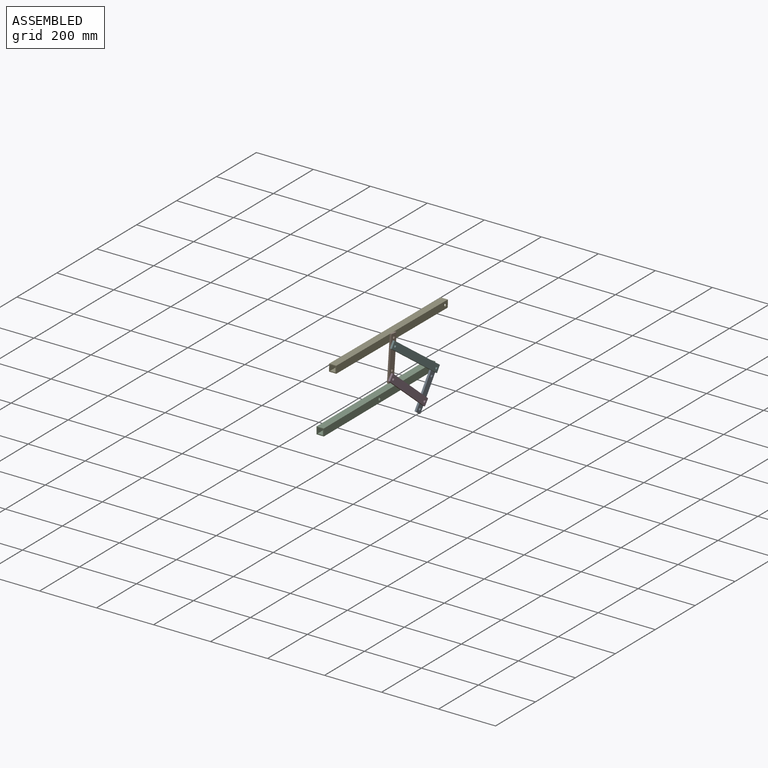
[diagram: assembled view]
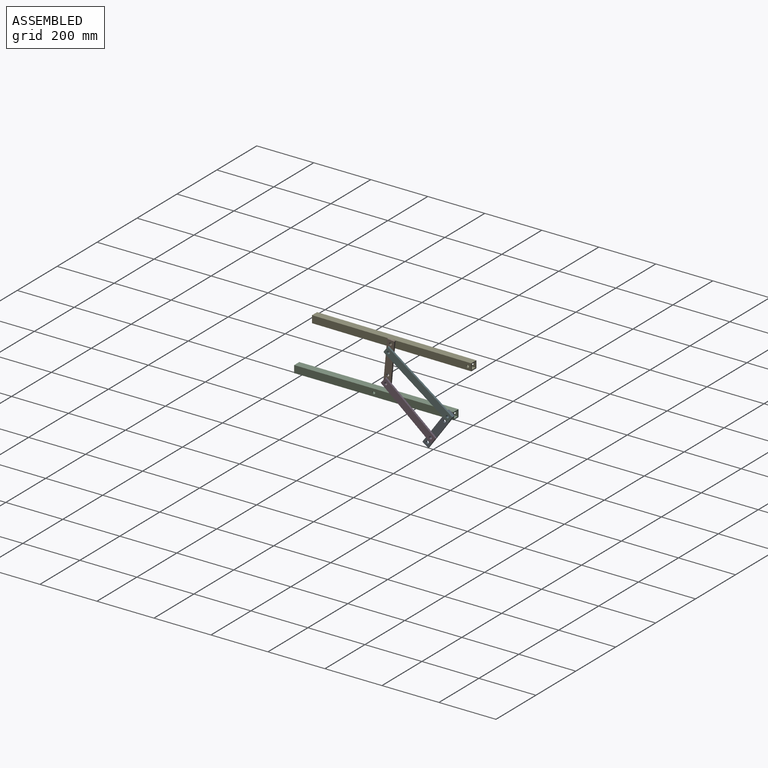
[diagram: assembled view, second angle]
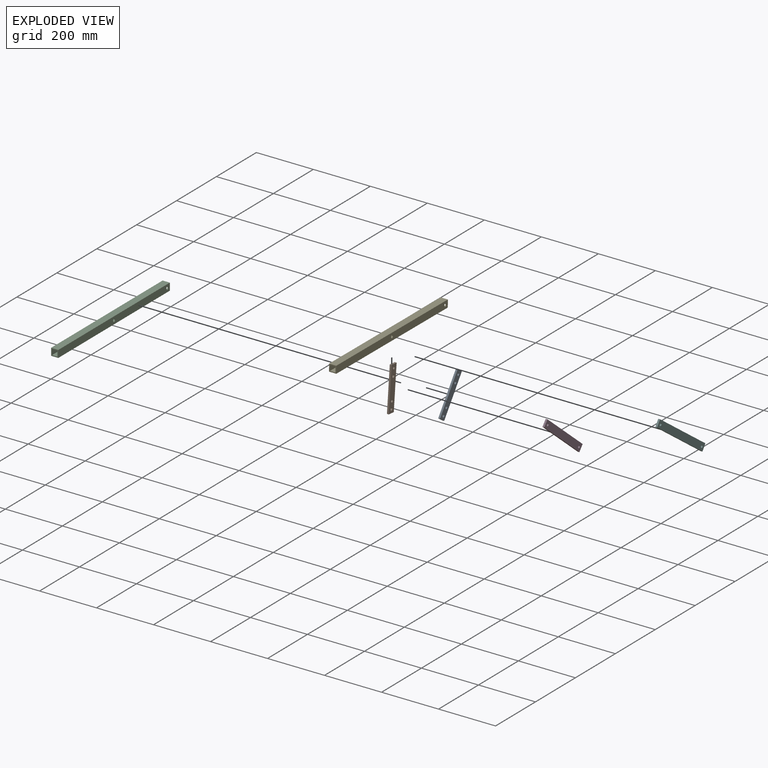
[diagram: exploded view]
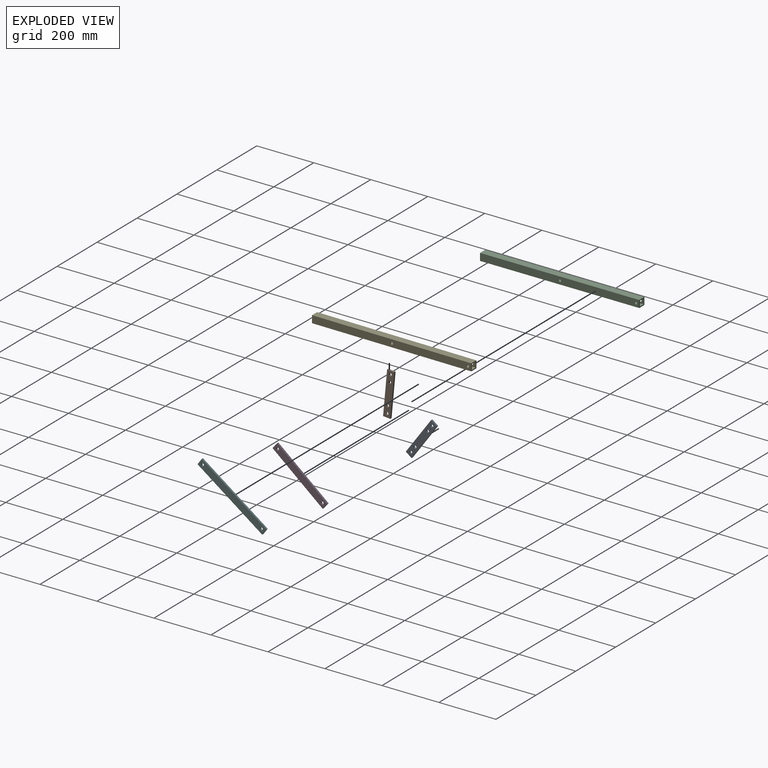
[diagram: exploded view, second angle]
ASSEMBLY  parts=6 mates=7
PART A: 10 faces, bbox 6.4x25.4x152.4 mm
  f0: plane 25.4x6.35mm, normal (0,0,1), area 161.3mm2, adj f1,f7,f8,f9
  f1: plane 152.4x6.35mm, normal (0,-1,0), area 967.7mm2, adj f0,f2,f8,f9
  f2: plane 25.4x6.35mm, normal (0,0,-1), area 161.3mm2, adj f1,f7,f8,f9
  f3: cylinder r=4.76mm len=9.53mm, axis (-1,0,0), area 190mm2, adj f8,f9
  f4: cylinder r=4.76mm len=9.53mm, axis (-1,0,0), area 190mm2, adj f8,f9
  f5: cylinder r=4.76mm len=9.53mm, axis (-1,0,0), area 190mm2, adj f8,f9
  f6: cylinder r=4.76mm len=9.53mm, axis (-1,0,0), area 190mm2, adj f8,f9
  f7: plane 152.4x6.35mm, normal (0,1,0), area 967.7mm2, adj f0,f2,f8,f9
  f8: plane 152.4x25.4mm, normal (1,0,0), area 3585.9mm2, adj f0,f1,f2,f3,f4,f5,f6,f7
  f9: plane 152.4x25.4mm, normal (-1,0,0), area 3585.9mm2, adj f0,f1,f2,f3,f4,f5,f6,f7
PART B: same geometry as A
PART C: 14 faces, bbox 25.4x558.8x25.4 mm
  f0: plane 558.8x25.4mm, normal (0,0,1), area 14193.5mm2, adj f1,f7,f8,f9
  f1: plane 558.8x25.4mm, normal (-1,0,0), area 14051mm2, adj f0,f2,f8,f9,f12,f13
  f2: plane 558.8x25.4mm, normal (0,0,-1), area 14193.5mm2, adj f1,f7,f8,f9
  f3: plane 558.8x19.05mm, normal (1,0,0), area 10502.6mm2, adj f4,f6,f8,f9,f12,f13
  f4: plane 558.8x19.05mm, normal (0,0,-1), area 10645.1mm2, adj f3,f5,f8,f9
  f5: plane 558.8x19.05mm, normal (-1,0,0), area 10502.6mm2, adj f4,f6,f8,f9,f10,f11
  f6: plane 558.8x19.05mm, normal (0,0,1), area 10645.1mm2, adj f3,f5,f8,f9
  f7: plane 558.8x25.4mm, normal (1,0,0), area 14051mm2, adj f0,f2,f8,f9,f10,f11
  f8: plane 25.4x25.4mm, normal (0,-1,0), area 282.3mm2, adj f0,f1,f2,f3,f4,f5,f6,f7
  f9: plane 25.4x25.4mm, normal (0,1,0), area 282.3mm2, adj f0,f1,f2,f3,f4,f5,f6,f7
  f10: cylinder r=4.76mm len=9.53mm, axis (1,0,0), area 95mm2, adj f5,f7
  f11: cylinder r=4.76mm len=9.53mm, axis (1,0,0), area 95mm2, adj f5,f7
  f12: cylinder r=4.76mm len=9.53mm, axis (1,0,0), area 95mm2, adj f1,f3
  f13: cylinder r=4.76mm len=9.53mm, axis (1,0,0), area 95mm2, adj f1,f3
PART D: 8 faces, bbox 6.4x228.6x25.4 mm
  f0: plane 228.6x6.35mm, normal (0,0,1), area 1451.6mm2, adj f1,f5,f6,f7
  f1: plane 25.4x6.35mm, normal (0,-1,0), area 161.3mm2, adj f0,f2,f6,f7
  f2: plane 228.6x6.35mm, normal (0,0,-1), area 1451.6mm2, adj f1,f5,f6,f7
  f3: cylinder r=4.76mm len=9.53mm, axis (-1,0,0), area 190mm2, adj f6,f7
  f4: cylinder r=4.76mm len=9.53mm, axis (-1,0,0), area 190mm2, adj f6,f7
  f5: plane 25.4x6.35mm, normal (0,1,0), area 161.3mm2, adj f0,f2,f6,f7
  f6: plane 228.6x25.4mm, normal (1,0,0), area 5663.9mm2, adj f0,f1,f2,f3,f4,f5
  f7: plane 228.6x25.4mm, normal (-1,0,0), area 5663.9mm2, adj f0,f1,f2,f3,f4,f5
PART E: same geometry as C
PART F: 8 faces, bbox 6.4x279.4x25.4 mm
  f0: plane 279.4x6.35mm, normal (0,0,1), area 1774.2mm2, adj f1,f5,f6,f7
  f1: plane 25.4x6.35mm, normal (0,-1,0), area 161.3mm2, adj f0,f2,f6,f7
  f2: plane 279.4x6.35mm, normal (0,0,-1), area 1774.2mm2, adj f1,f5,f6,f7
  f3: cylinder r=4.76mm len=9.53mm, axis (-1,0,0), area 190mm2, adj f6,f7
  f4: cylinder r=4.76mm len=9.53mm, axis (-1,0,0), area 190mm2, adj f6,f7
  f5: plane 25.4x6.35mm, normal (0,1,0), area 161.3mm2, adj f0,f2,f6,f7
  f6: plane 279.4x25.4mm, normal (1,0,0), area 6954.2mm2, adj f0,f1,f2,f3,f4,f5
  f7: plane 279.4x25.4mm, normal (-1,0,0), area 6954.2mm2, adj f0,f1,f2,f3,f4,f5
PLACE A rot(axis=(-1,0,0),35.7deg) t=(12.7,229.68,-51.59)mm
PLACE B rot(axis=(-1,0,0),5.4deg) t=(12.7,56.78,110.16)mm
PLACE C t=(0,279.4,0)mm fixed
PLACE D rot(axis=(-1,0,0),39.6deg) t=(19.05,148.74,-33.99)mm
PLACE E rot(axis=(-1,0,0),0.3deg) t=(0,342.1,171.7)mm
PLACE F rot(axis=(-1,0,0),35.7deg) t=(19.05,163.52,74.04)mm
MATE revolute D.f3 <-> B.f4  axis (-1,0,0) through (19.05,50.86,46.93)mm
MATE revolute E.f10 <-> B.f3  axis (1,0,0) through (12.7,62.71,173.38)mm
MATE revolute A.f3 <-> C.f11  axis (-1,0,0) through (12.7,266.7,0)mm
MATE revolute F.f4 <-> A.f3  axis (-1,0,0) through (19.05,266.7,0)mm
MATE revolute D.f4 <-> A.f6  axis (-1,0,0) through (19.05,207.46,-82.54)mm
MATE revolute F.f3 <-> B.f5  axis (-1,0,0) through (19.05,60.34,148.09)mm
MATE planar F.f5 <-> A.f7  axis (0,0.81,-0.58) through (22.22,277.02,-7.4)mm
